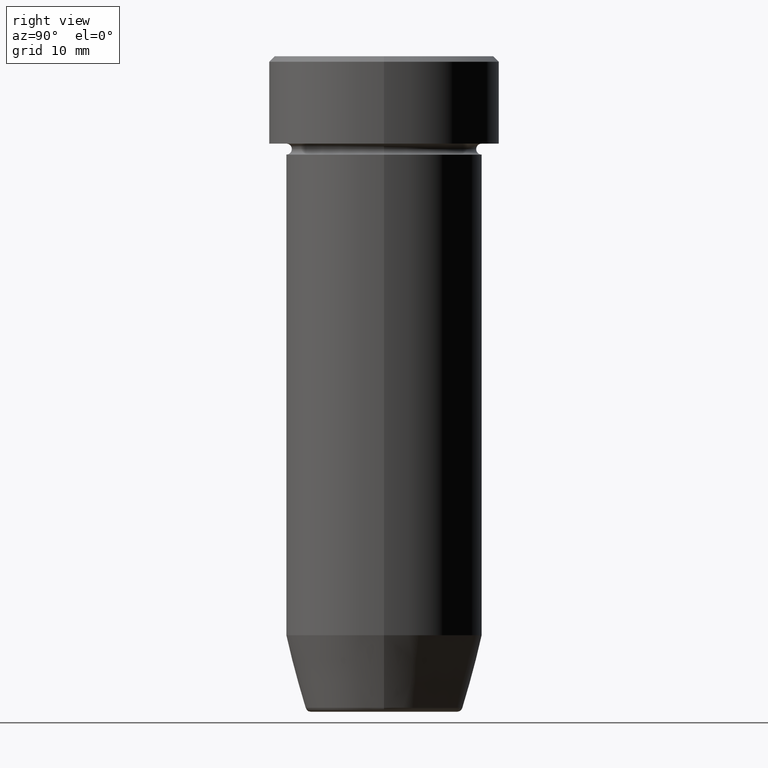
[diagram: clean part render]
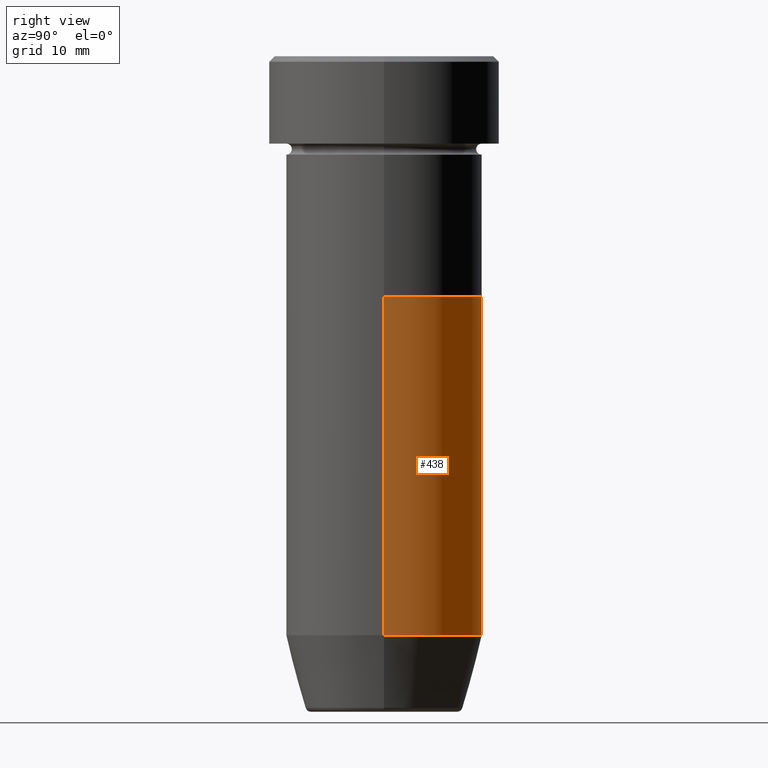
[diagram: same view with one face highlighted and labeled with its STEP entity id]
A machine part, right view. The second image highlights one B-rep face of the part: STEP entity #438.
In plain terms, the highlighted cylindrical surface (partial cylindrical patch) has radius 9 mm, axis along (-0, -0, 1).
Its self-contained STEP definition (entity closure, byte-faithful):
#18 = DIRECTION ( 'NONE',  ( -0.000000000000000000, -0.000000000000000000, 1.000000000000000000 ) ) ;
#46 = CYLINDRICAL_SURFACE ( 'NONE', #162, 9.000000000000000000 ) ;
#58 = CIRCLE ( 'NONE', #501, 9.000000000000000000 ) ;
#80 = CARTESIAN_POINT ( 'NONE',  ( -9.000000000000000000, 1.102182119232617714E-15, -22.00000000000000000 ) ) ;
#88 = DIRECTION ( 'NONE',  ( -0.000000000000000000, -0.000000000000000000, 1.000000000000000000 ) ) ;
#93 = EDGE_CURVE ( 'NONE', #252, #462, #580, .T. ) ;
#103 = EDGE_LOOP ( 'NONE', ( #171, #535, #295, #429 ) ) ;
#117 = AXIS2_PLACEMENT_3D ( 'NONE', #256, #18, #486 ) ;
#131 = VECTOR ( 'NONE', #559, 1000.000000000000000 ) ;
#148 = VERTEX_POINT ( 'NONE', #365 ) ;
#162 = AXIS2_PLACEMENT_3D ( 'NONE', #399, #224, #318 ) ;
#171 = ORIENTED_EDGE ( 'NONE', *, *, #522, .T. ) ;
#177 = CARTESIAN_POINT ( 'NONE',  ( 9.000000000000000000, 0.000000000000000000, 0.000000000000000000 ) ) ;
#184 = CARTESIAN_POINT ( 'NONE',  ( 9.000000000000000000, 0.000000000000000000, -22.00000000000000000 ) ) ;
#190 = EDGE_CURVE ( 'NONE', #148, #462, #510, .T. ) ;
#197 = DIRECTION ( 'NONE',  ( 1.000000000000000000, 0.000000000000000000, 0.000000000000000000 ) ) ;
#224 = DIRECTION ( 'NONE',  ( -0.000000000000000000, -0.000000000000000000, 1.000000000000000000 ) ) ;
#252 = VERTEX_POINT ( 'NONE', #184 ) ;
#256 = CARTESIAN_POINT ( 'NONE',  ( 0.000000000000000000, 0.000000000000000000, -22.00000000000000000 ) ) ;
#288 = CARTESIAN_POINT ( 'NONE',  ( 0.000000000000000000, 0.000000000000000000, -53.00000000000000000 ) ) ;
#295 = ORIENTED_EDGE ( 'NONE', *, *, #93, .F. ) ;
#318 = DIRECTION ( 'NONE',  ( 1.000000000000000000, 0.000000000000000000, 0.000000000000000000 ) ) ;
#365 = CARTESIAN_POINT ( 'NONE',  ( -9.000000000000000000, 1.102182119232617714E-15, -53.00000000000000000 ) ) ;
#369 = CARTESIAN_POINT ( 'NONE',  ( 9.000000000000000000, 0.000000000000000000, -53.00000000000000000 ) ) ;
#399 = CARTESIAN_POINT ( 'NONE',  ( 0.000000000000000000, 0.000000000000000000, 0.000000000000000000 ) ) ;
#405 = CARTESIAN_POINT ( 'NONE',  ( -9.000000000000000000, 1.102182119232617714E-15, 0.000000000000000000 ) ) ;
#412 = LINE ( 'NONE', #177, #131 ) ;
#429 = ORIENTED_EDGE ( 'NONE', *, *, #476, .F. ) ;
#438 = ADVANCED_FACE ( 'NONE', ( #561 ), #46, .T. ) ;
#454 = VERTEX_POINT ( 'NONE', #369 ) ;
#462 = VERTEX_POINT ( 'NONE', #80 ) ;
#476 = EDGE_CURVE ( 'NONE', #454, #252, #412, .T. ) ;
#486 = DIRECTION ( 'NONE',  ( 1.000000000000000000, 0.000000000000000000, 0.000000000000000000 ) ) ;
#500 = VECTOR ( 'NONE', #88, 1000.000000000000000 ) ;
#501 = AXIS2_PLACEMENT_3D ( 'NONE', #288, #569, #197 ) ;
#510 = LINE ( 'NONE', #405, #500 ) ;
#522 = EDGE_CURVE ( 'NONE', #454, #148, #58, .T. ) ;
#535 = ORIENTED_EDGE ( 'NONE', *, *, #190, .T. ) ;
#559 = DIRECTION ( 'NONE',  ( -0.000000000000000000, -0.000000000000000000, 1.000000000000000000 ) ) ;
#561 = FACE_OUTER_BOUND ( 'NONE', #103, .T. ) ;
#569 = DIRECTION ( 'NONE',  ( -0.000000000000000000, -0.000000000000000000, 1.000000000000000000 ) ) ;
#580 = CIRCLE ( 'NONE', #117, 9.000000000000000000 ) ;